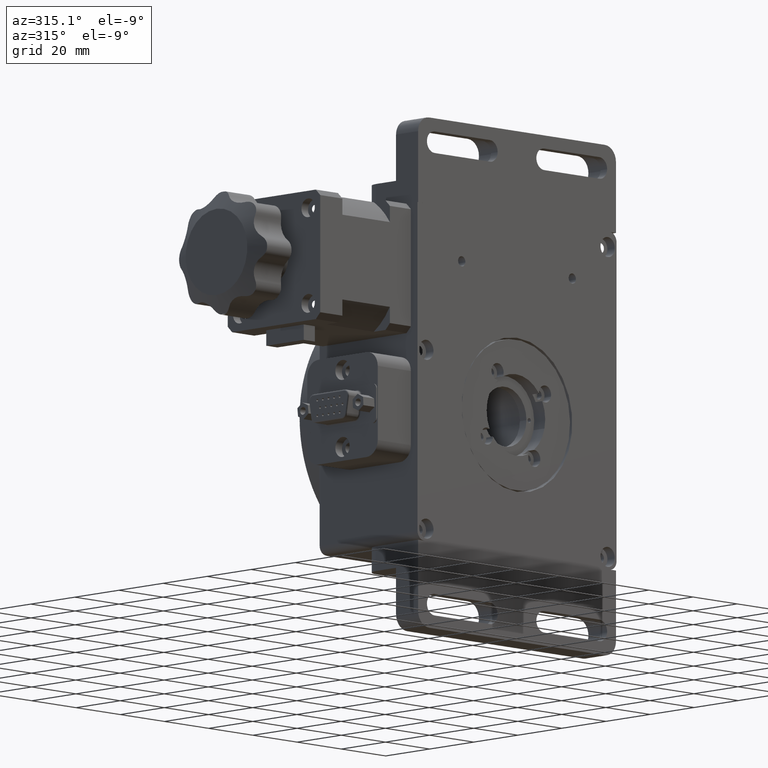
[diagram: clean part render]
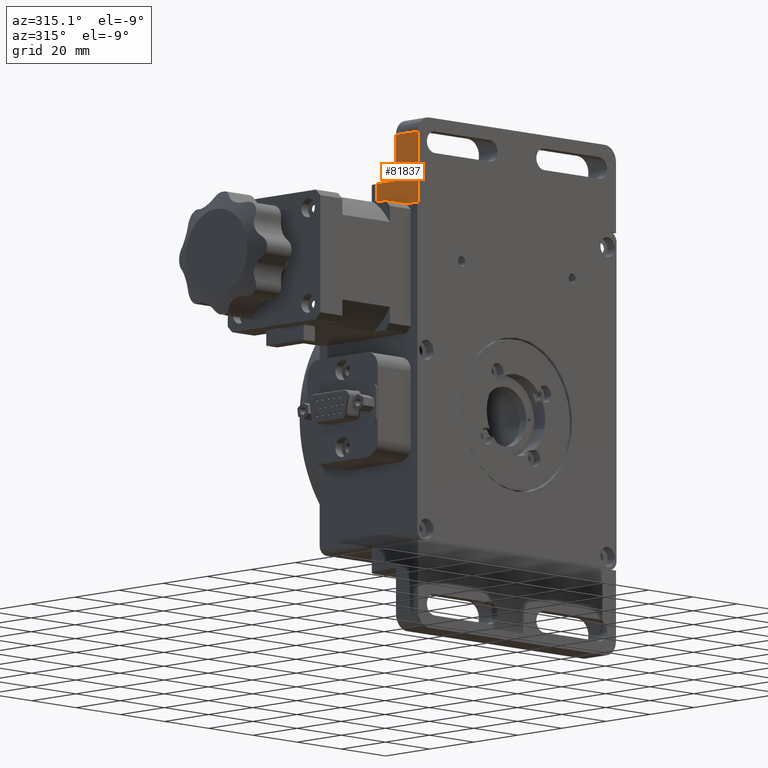
[diagram: same view with one face highlighted and labeled with its STEP entity id]
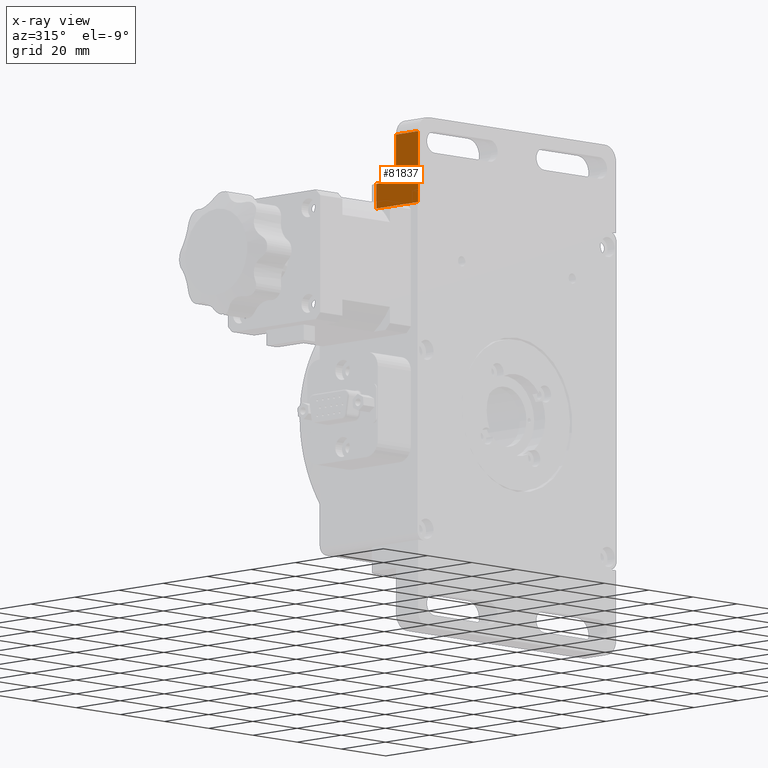
[diagram: x-ray of the same camera — body ghosted, the highlighted face saturated]
A machine part, auxiliary view. The second image highlights one B-rep face of the part: STEP entity #81837.
The next image is the same camera in x-ray: the body ghosted, the highlighted face saturated — about 0% of this face is hidden behind the body in this view.
In plain terms, the highlighted planar face has unit normal (-1, -0, 0).
Its self-contained STEP definition (entity closure, byte-faithful):
#3097 = VECTOR ( 'NONE', #4078, 1000.000000000000000 ) ;
#3366 = ORIENTED_EDGE ( 'NONE', *, *, #30016, .F. ) ;
#3640 = VECTOR ( 'NONE', #97677, 1000.000000000000000 ) ;
#4078 = DIRECTION ( 'NONE',  ( -1.224606353822378200E-016, 1.000000000000000000, 5.338101260522120200E-017 ) ) ;
#6245 = CARTESIAN_POINT ( 'NONE',  ( -44.75000000000001400, 18.99999999999999600, 64.00000000000002800 ) ) ;
#8036 = VERTEX_POINT ( 'NONE', #100852 ) ;
#9985 = VERTEX_POINT ( 'NONE', #96364 ) ;
#12265 = CARTESIAN_POINT ( 'NONE',  ( -44.75000000000000700, 9.999999999999994700, 92.00000000000002800 ) ) ;
#17103 = VECTOR ( 'NONE', #41884, 1000.000000000000000 ) ;
#20429 = CARTESIAN_POINT ( 'NONE',  ( -44.75000000000000700, 9.999999999999994700, 87.00000000000002800 ) ) ;
#22508 = VERTEX_POINT ( 'NONE', #77973 ) ;
#27960 = ORIENTED_EDGE ( 'NONE', *, *, #60531, .F. ) ;
#30016 = EDGE_CURVE ( 'NONE', #9985, #99482, #62176, .T. ) ;
#32555 = EDGE_LOOP ( 'NONE', ( #3366, #68460, #34664, #46013, #71666, #27960 ) ) ;
#32770 = LINE ( 'NONE', #6245, #75193 ) ;
#33366 = CARTESIAN_POINT ( 'NONE',  ( -44.75000000000000700, 9.999999999999996400, 72.00000000000004300 ) ) ;
#33957 = CARTESIAN_POINT ( 'NONE',  ( -44.75000000000000700, 9.999999999999994700, 92.00000000000002800 ) ) ;
#34664 = ORIENTED_EDGE ( 'NONE', *, *, #87643, .F. ) ;
#38473 = VECTOR ( 'NONE', #88564, 1000.000000000000000 ) ;
#41884 = DIRECTION ( 'NONE',  ( 1.224606353822378500E-016, -1.000000000000000000, 1.944366268200369600E-016 ) ) ;
#42456 = DIRECTION ( 'NONE',  ( -1.224606353822378200E-016, 1.000000000000000000, 5.338101260522120200E-017 ) ) ;
#46013 = ORIENTED_EDGE ( 'NONE', *, *, #109546, .F. ) ;
#51377 = LINE ( 'NONE', #89147, #3640 ) ;
#51912 = FACE_OUTER_BOUND ( 'NONE', #32555, .T. ) ;
#56205 = AXIS2_PLACEMENT_3D ( 'NONE', #33957, #93236, #42456 ) ;
#58091 = EDGE_CURVE ( 'NONE', #9985, #91383, #32770, .T. ) ;
#60531 = EDGE_CURVE ( 'NONE', #99482, #8036, #61056, .T. ) ;
#61056 = LINE ( 'NONE', #12265, #38473 ) ;
#62176 = LINE ( 'NONE', #33366, #17103 ) ;
#64127 = VECTOR ( 'NONE', #74591, 1000.000000000000000 ) ;
#68460 = ORIENTED_EDGE ( 'NONE', *, *, #58091, .T. ) ;
#68990 = CARTESIAN_POINT ( 'NONE',  ( -44.75000000000000700, 9.999999999999996400, 72.00000000000004300 ) ) ;
#71666 = ORIENTED_EDGE ( 'NONE', *, *, #81227, .T. ) ;
#73155 = CARTESIAN_POINT ( 'NONE',  ( -44.75000000000001400, 19.00000000000000000, 64.00000000000002800 ) ) ;
#74417 = CARTESIAN_POINT ( 'NONE',  ( -44.75000000000000700, -5.204170427930421300E-015, 87.00000000000002800 ) ) ;
#74591 = DIRECTION ( 'NONE',  ( -1.224606353822378000E-016, 1.000000000000000000, 1.979413022699551000E-016 ) ) ;
#75193 = VECTOR ( 'NONE', #99253, 1000.000000000000000 ) ;
#77973 = CARTESIAN_POINT ( 'NONE',  ( -44.75000000000000700, -3.469446951953614200E-015, 64.00000000000002800 ) ) ;
#81227 = EDGE_CURVE ( 'NONE', #109260, #8036, #95916, .T. ) ;
#81837 = ADVANCED_FACE ( 'NONE', ( #51912 ), #109926, .T. ) ;
#86648 = LINE ( 'NONE', #101277, #64127 ) ;
#87643 = EDGE_CURVE ( 'NONE', #22508, #91383, #86648, .T. ) ;
#88564 = DIRECTION ( 'NONE',  ( 1.183475135621000300E-016, -5.338101260522124500E-017, 1.000000000000000000 ) ) ;
#89147 = CARTESIAN_POINT ( 'NONE',  ( -44.75000000000000700, -5.204170427930421300E-015, 92.00000000000002800 ) ) ;
#91383 = VERTEX_POINT ( 'NONE', #73155 ) ;
#93236 = DIRECTION ( 'NONE',  ( -1.000000000000000000, -1.224606353822378200E-016, 1.183475135621000300E-016 ) ) ;
#95916 = LINE ( 'NONE', #20429, #3097 ) ;
#96364 = CARTESIAN_POINT ( 'NONE',  ( -44.75000000000000700, 18.99999999999999600, 72.00000000000002800 ) ) ;
#97677 = DIRECTION ( 'NONE',  ( -1.183475135621000300E-016, 5.338101260522124500E-017, -1.000000000000000000 ) ) ;
#99253 = DIRECTION ( 'NONE',  ( -1.183475135621000300E-016, 5.338101260522124500E-017, -1.000000000000000000 ) ) ;
#99482 = VERTEX_POINT ( 'NONE', #68990 ) ;
#100852 = CARTESIAN_POINT ( 'NONE',  ( -44.75000000000000700, 9.999999999999994700, 87.00000000000002800 ) ) ;
#101277 = CARTESIAN_POINT ( 'NONE',  ( -44.75000000000000700, -3.469446951953614200E-015, 64.00000000000002800 ) ) ;
#109260 = VERTEX_POINT ( 'NONE', #74417 ) ;
#109546 = EDGE_CURVE ( 'NONE', #109260, #22508, #51377, .T. ) ;
#109926 = PLANE ( 'NONE',  #56205 ) ;